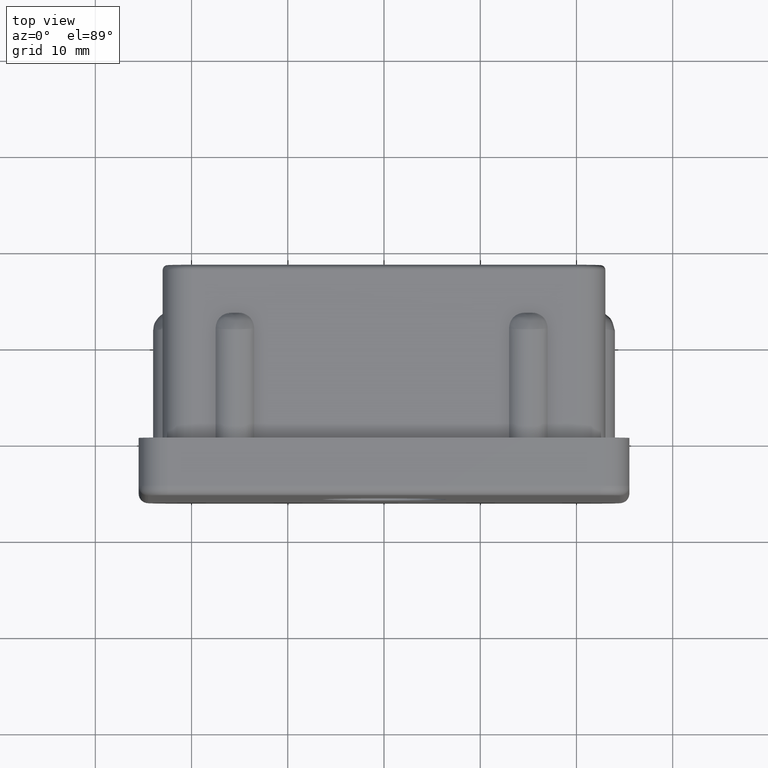
[diagram: clean part render]
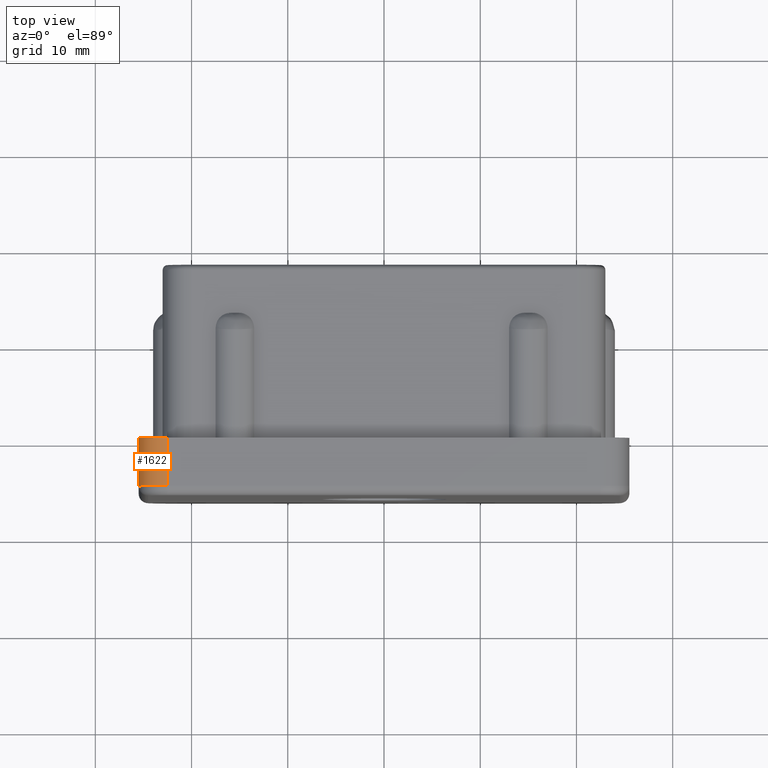
[diagram: same view with one face highlighted and labeled with its STEP entity id]
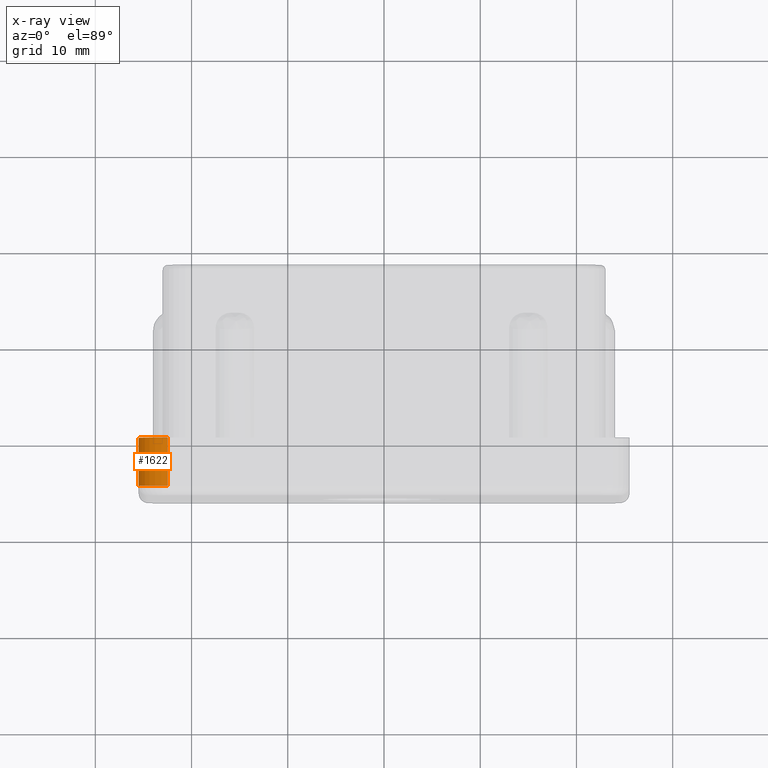
[diagram: x-ray of the same camera — body ghosted, the highlighted face saturated]
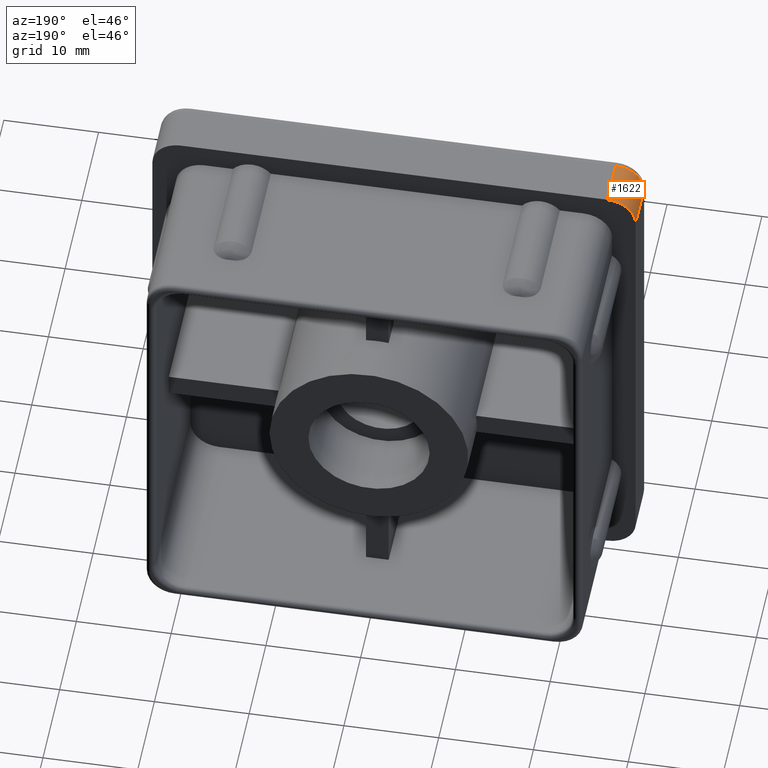
[diagram: same view with one face highlighted and labeled with its STEP entity id]
A machine part, top view. The second image highlights one B-rep face of the part: STEP entity #1622.
The next image is the same camera in x-ray: the body ghosted, the highlighted face saturated — about 0% of this face is hidden behind the body in this view.
A second angle (auxiliary view) of the same face is appended — the face is thin or edge-on in the first view.
In plain terms, the highlighted cylindrical surface (edge-blend (fillet) strip) has radius 3 mm, axis along (0, -1, 0).
Its self-contained STEP definition (entity closure, byte-faithful):
#78=CIRCLE('',#1655,3.);
#135=CIRCLE('',#1747,3.);
#186=CYLINDRICAL_SURFACE('',#1777,3.);
#256=FACE_OUTER_BOUND('',#348,.T.);
#348=EDGE_LOOP('',(#1442,#1443,#1444,#1445));
#466=LINE('',#3878,#598);
#488=LINE('',#3934,#620);
#598=VECTOR('',#2118,5.);
#620=VECTOR('',#2182,5.);
#707=VERTEX_POINT('',#3616);
#708=VERTEX_POINT('',#3618);
#787=VERTEX_POINT('',#3851);
#789=VERTEX_POINT('',#3857);
#869=EDGE_CURVE('',#708,#707,#78,.T.);
#993=EDGE_CURVE('',#789,#787,#135,.T.);
#1004=EDGE_CURVE('',#789,#708,#466,.T.);
#1031=EDGE_CURVE('',#707,#787,#488,.T.);
#1442=ORIENTED_EDGE('',*,*,#993,.F.);
#1443=ORIENTED_EDGE('',*,*,#1004,.T.);
#1444=ORIENTED_EDGE('',*,*,#869,.T.);
#1445=ORIENTED_EDGE('',*,*,#1031,.T.);
#1622=ADVANCED_FACE('',(#256),#186,.T.);
#1655=AXIS2_PLACEMENT_3D('',#3619,#1842,#1843);
#1747=AXIS2_PLACEMENT_3D('',#3859,#2093,#2094);
#1777=AXIS2_PLACEMENT_3D('',#3933,#2180,#2181);
#1842=DIRECTION('center_axis',(0.,-1.,0.));
#1843=DIRECTION('ref_axis',(-0.707106781186546,0.,0.707106781186549));
#2093=DIRECTION('center_axis',(0.,-1.,0.));
#2094=DIRECTION('ref_axis',(-0.707106781186548,0.,0.707106781186548));
#2118=DIRECTION('',(0.,1.,0.));
#2180=DIRECTION('center_axis',(0.,-1.,0.));
#2181=DIRECTION('ref_axis',(-0.707106781186546,0.,0.707106781186549));
#2182=DIRECTION('',(0.,-1.,0.));
#3616=CARTESIAN_POINT('',(-25.5,0.,22.5));
#3618=CARTESIAN_POINT('',(-22.5,0.,25.5));
#3619=CARTESIAN_POINT('Origin',(-22.5,0.,22.5));
#3851=CARTESIAN_POINT('',(-25.5,-5.,22.5));
#3857=CARTESIAN_POINT('',(-22.5,-5.,25.5));
#3859=CARTESIAN_POINT('Origin',(-22.5,-5.,22.5));
#3878=CARTESIAN_POINT('',(-22.5,0.,25.5));
#3933=CARTESIAN_POINT('Origin',(-22.5,0.,22.5));
#3934=CARTESIAN_POINT('',(-25.5,0.,22.5));